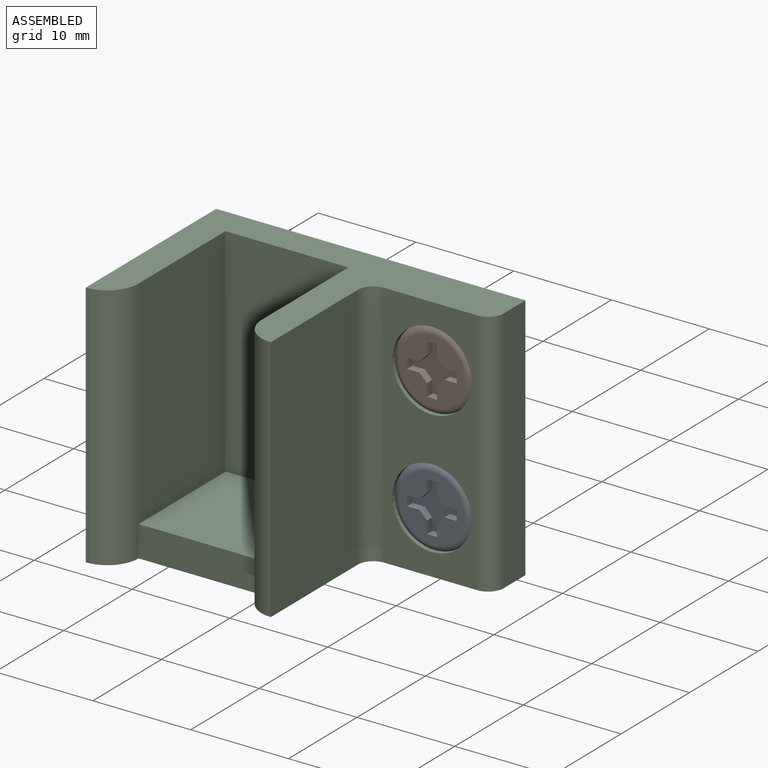
[diagram: assembled view]
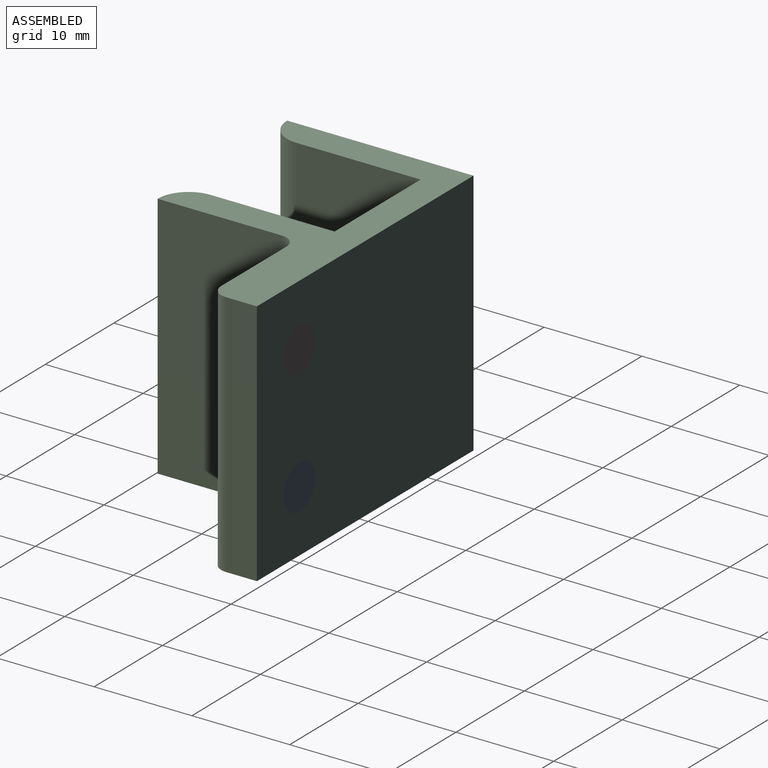
[diagram: assembled view, second angle]
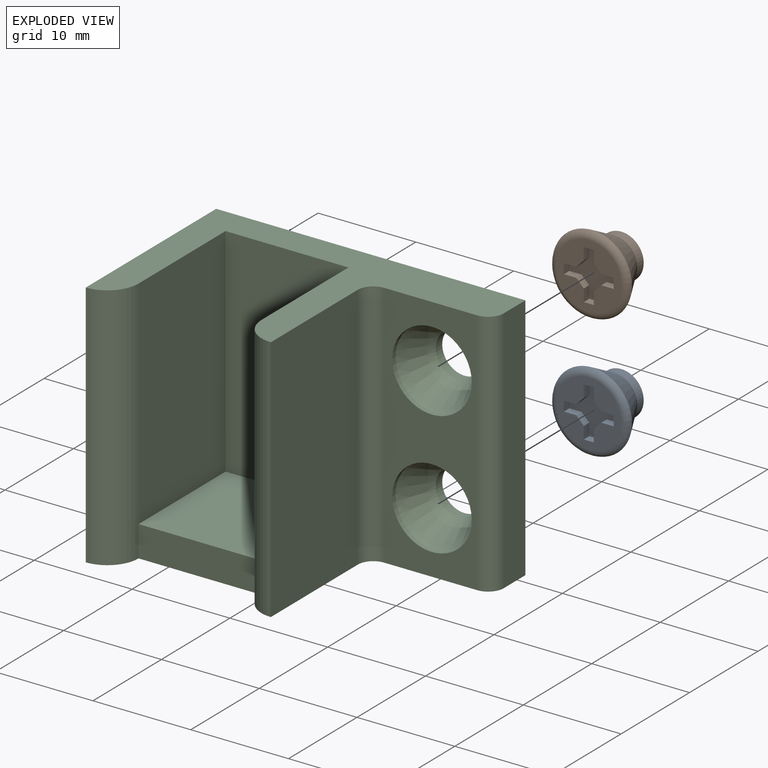
[diagram: exploded view]
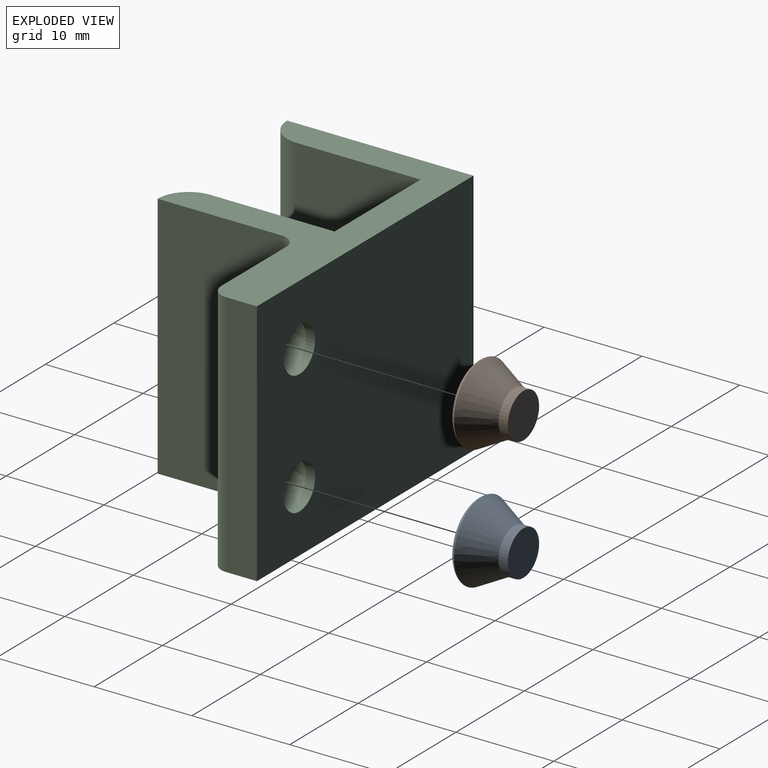
[diagram: exploded view, second angle]
ASSEMBLY  parts=3 mates=2
PART A: 22 faces, bbox 8.9x8.9x4.8 mm
  f0: plane 6.69x6.69mm, normal (0,0,1), area 24.7mm2, adj f4,f5,f6,f7,f8,f9,f10,f11
  f1: plane 4.57x4.57mm, normal (0,0,-1), area 16.4mm2, adj f2
  f2: cylinder r=2.29mm len=4.57mm, axis (0,0,-1), area 13.7mm2, adj f1,f3
  f3: cone r=4.06mm half-angle=28.3deg, axis (0,0,1), area 74.8mm2, adj f2,f21
  f4: plane 1.25x0.79mm, normal (1,0,0), area 1mm2, adj f0,f5,f19,f20
  f5: plane 1.02x0.79mm, normal (0,1,0), area 0.8mm2, adj f0,f4,f6,f20
  f6: plane 1.25x0.79mm, normal (-1,0,0), area 1mm2, adj f0,f5,f7,f20
  f7: plane 0.79x0.78mm, normal (-0.71,0.71,0), area 0.9mm2, adj f0,f6,f8,f20
  f8: plane 1.25x0.79mm, normal (0,1,0), area 1mm2, adj f0,f7,f9,f20
  f9: plane 1.02x0.79mm, normal (-1,0,0), area 0.8mm2, adj f0,f8,f10,f20
  f10: plane 1.25x0.79mm, normal (0,-1,0), area 1mm2, adj f0,f9,f11,f20
  f11: plane 0.79x0.78mm, normal (-0.71,-0.71,0), area 0.9mm2, adj f0,f10,f12,f20
  f12: plane 1.25x0.79mm, normal (-1,0,0), area 1mm2, adj f0,f11,f13,f20
  f13: plane 1.02x0.79mm, normal (0,-1,0), area 0.8mm2, adj f0,f12,f14,f20
  f14: plane 1.25x0.79mm, normal (1,0,0), area 1mm2, adj f0,f13,f15,f20
  f15: plane 0.79x0.78mm, normal (0.71,-0.71,0), area 0.9mm2, adj f0,f14,f16,f20
  f16: plane 1.25x0.79mm, normal (0,-1,0), area 1mm2, adj f0,f15,f17,f20
  f17: plane 1.02x0.79mm, normal (1,0,0), area 0.8mm2, adj f0,f16,f18,f20
  f18: plane 1.25x0.79mm, normal (0,1,0), area 1mm2, adj f0,f17,f19,f20
  f19: plane 0.79x0.78mm, normal (0.71,0.71,0), area 0.9mm2, adj f0,f4,f18,f20
  f20: plane 5.08x5.08mm, normal (0,0,1), area 10.5mm2, adj f4,f5,f6,f7,f8,f9,f10,f11
  f21: torus R=3.35mm, axis (0,0,1), area 22.1mm2, adj f0,f3
PART B: same geometry as A
PART C: 22 faces, bbox 31.6x25.4x19.1 mm
  f0: cylinder r=2.29mm len=4.57mm, axis (0,0,1), area 13.7mm2, adj f1,f6
  f1: cone r=4.06mm half-angle=28.3deg, axis (0,0,1), area 74.8mm2, adj f0,f2
  f2: cylinder r=4.06mm len=8.13mm, axis (0,0,1), area 13mm2, adj f1,f9
  f3: plane 22.23x12.7mm, normal (-1,0,0), area 282.3mm2, adj f4,f12,f16,f18
  f4: plane 22.23x12.57mm, normal (0,0,1), area 279.4mm2, adj f3,f5,f16,f18
  f5: plane 22.23x12.7mm, normal (1,0,0), area 282.3mm2, adj f4,f13,f16,f18
  f6: plane 31.62x25.4mm, normal (0,0,-1), area 770.4mm2, adj f0,f7,f14,f15,f16,f19
  f7: plane 25.4x3.18mm, normal (1,0,0), area 80.6mm2, adj f6,f8,f15,f16
  f8: cylinder r=1.59mm len=25.4mm, axis (0,1,0), area 63.3mm2, adj f7,f9,f15,f16
  f9: plane 25.4x9.53mm, normal (0,0,1), area 138.2mm2, adj f2,f8,f10,f15,f16,f21
  f10: cylinder r=1.59mm len=25.4mm, axis (0,1,0), area 63.3mm2, adj f9,f11,f15,f16
  f11: plane 25.4x12.7mm, normal (1,0,0), area 322.6mm2, adj f10,f12,f15,f16
  f12: cylinder r=3.17mm len=25.4mm, axis (0,1,0), area 126.7mm2, adj f3,f11,f15,f16,f17
  f13: cylinder r=3.17mm len=25.4mm, axis (0,1,0), area 126.7mm2, adj f5,f14,f15,f16,f17
  f14: plane 25.4x19.05mm, normal (-1,0,0), area 483.9mm2, adj f6,f13,f15,f16
  f15: plane 31.62x19.05mm, normal (0,-1,0), area 376.7mm2, adj f6,f7,f8,f9,f10,f11,f12,f13
  f16: plane 31.62x19.05mm, normal (0,1,0), area 217mm2, adj f3,f4,f5,f6,f7,f8,f9,f10
  f17: plane 12.57x3.18mm, normal (0,0,1), area 39.9mm2, adj f12,f13,f15,f18
  f18: plane 12.7x12.57mm, normal (0,1,0), area 159.7mm2, adj f3,f4,f5,f17
  f19: cylinder r=2.29mm len=4.57mm, axis (0,0,1), area 13.7mm2, adj f6,f20
  f20: cone r=4.06mm half-angle=28.3deg, axis (0,0,1), area 74.8mm2, adj f19,f21
  f21: cylinder r=4.06mm len=8.13mm, axis (0,0,1), area 13mm2, adj f9,f20
PLACE A rot(axis=(1,0,0),90deg) t=(10,0,-6.35)mm
PLACE B rot(axis=(1,0,0),90deg) t=(10,0,6.35)mm
PLACE C rot(axis=(1,0,0),90deg) t=(-5.94,0,-6.35)mm
MATE fastened A.f2 <-> C.f19  axis (0,1,0) through (10,0,-6.35)mm
MATE fastened C.f0 <-> B.f2  axis (0,1,0) through (10,0,6.35)mm
